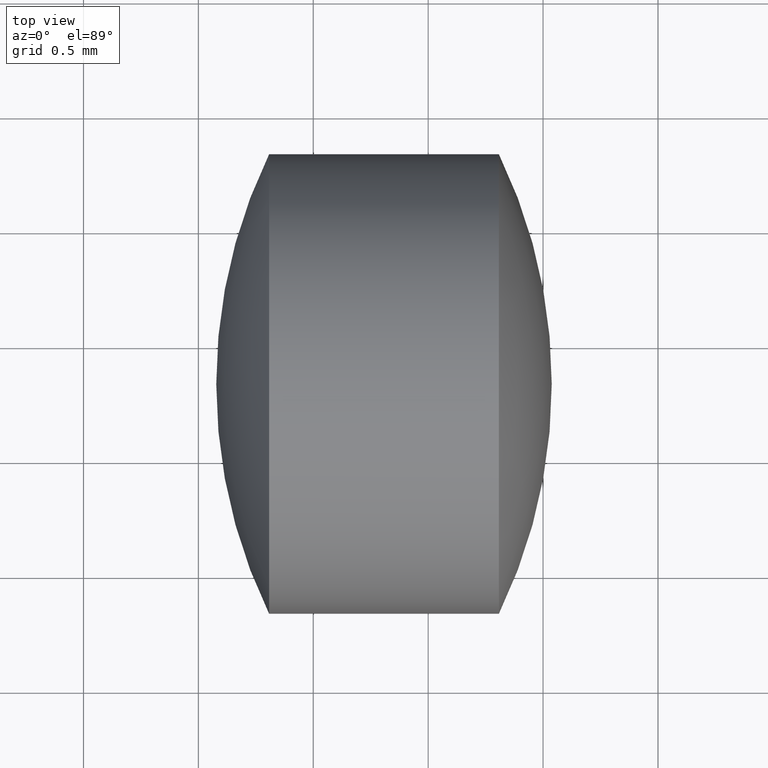
[diagram: clean part render]
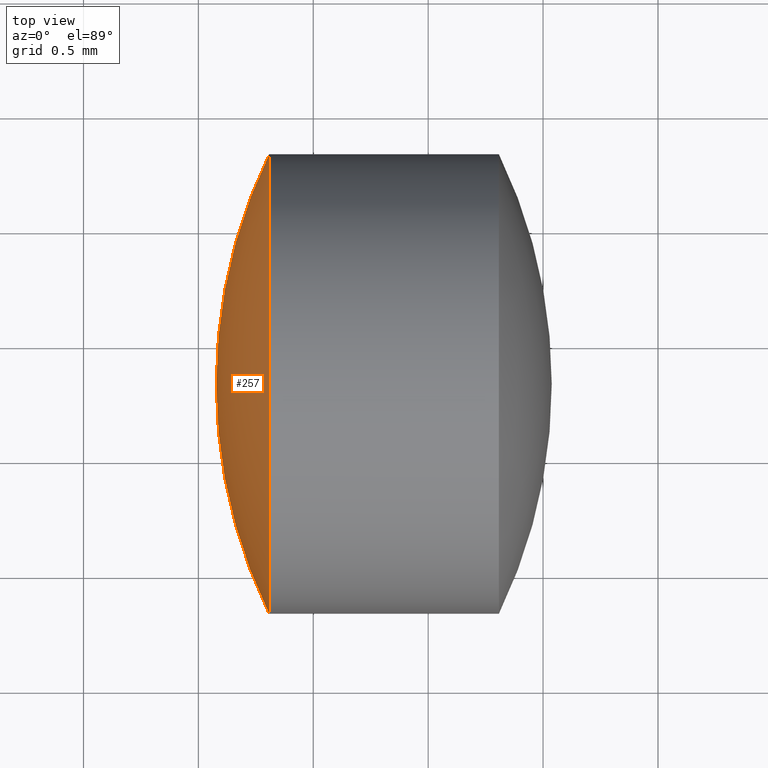
[diagram: same view with one face highlighted and labeled with its STEP entity id]
A machine part, top view. The second image highlights one B-rep face of the part: STEP entity #257.
In plain terms, the highlighted spherical surface has radius 2.2889 mm.
Its self-contained STEP definition (entity closure, byte-faithful):
#3 = EDGE_CURVE ( 'NONE', #84, #253, #224, .T. ) ;
#5 = DIRECTION ( 'NONE',  ( 1.214306433183652800E-014, -1.000000000000000000, 0.0000000000000000000 ) ) ;
#17 = AXIS2_PLACEMENT_3D ( 'NONE', #233, #119, #281 ) ;
#20 = AXIS2_PLACEMENT_3D ( 'NONE', #270, #86, #182 ) ;
#26 = DIRECTION ( 'NONE',  ( -0.0000000000000000000, 0.0000000000000000000, -1.000000000000000000 ) ) ;
#43 = EDGE_CURVE ( 'NONE', #241, #253, #214, .T. ) ;
#47 = DIRECTION ( 'NONE',  ( -1.000000000000000000, -1.235158047084468200E-014, -0.0000000000000000000 ) ) ;
#75 = AXIS2_PLACEMENT_3D ( 'NONE', #186, #26, #164 ) ;
#84 = VERTEX_POINT ( 'NONE', #195 ) ;
#86 = DIRECTION ( 'NONE',  ( -0.0000000000000000000, 0.0000000000000000000, 1.000000000000000000 ) ) ;
#102 = AXIS2_PLACEMENT_3D ( 'NONE', #279, #47, #5 ) ;
#119 = DIRECTION ( 'NONE',  ( -1.512632348803089900E-030, 1.224646799147353200E-016, -1.000000000000000000 ) ) ;
#133 = CIRCLE ( 'NONE', #102, 1.000000000000092400 ) ;
#159 = ORIENTED_EDGE ( 'NONE', *, *, #43, .F. ) ;
#164 = DIRECTION ( 'NONE',  ( -1.212609438996293800E-014, 1.000000000000000000, 0.0000000000000000000 ) ) ;
#180 = CARTESIAN_POINT ( 'NONE',  ( 6.077731793281122600, 3.828040395526763000, 0.0000000000000000000 ) ) ;
#182 = DIRECTION ( 'NONE',  ( 1.000000000000000000, 0.0000000000000000000, 0.0000000000000000000 ) ) ;
#184 = EDGE_LOOP ( 'NONE', ( #159, #278, #187 ) ) ;
#186 = CARTESIAN_POINT ( 'NONE',  ( 8.366644836758903000, 3.828040395526791000, 0.0000000000000000000 ) ) ;
#187 = ORIENTED_EDGE ( 'NONE', *, *, #3, .T. ) ;
#191 = CARTESIAN_POINT ( 'NONE',  ( 6.307731793281251800, 2.828040395526657300, -1.224646799147485600E-016 ) ) ;
#195 = CARTESIAN_POINT ( 'NONE',  ( 6.307731793281227800, 4.828040395526881100, 0.0000000000000000000 ) ) ;
#203 = SPHERICAL_SURFACE ( 'NONE', #75, 2.288913043477780500 ) ;
#214 = CIRCLE ( 'NONE', #17, 2.288913043477780900 ) ;
#224 = CIRCLE ( 'NONE', #20, 2.288913043477780500 ) ;
#233 = CARTESIAN_POINT ( 'NONE',  ( 8.366644836758903000, 3.828040395526791000, 0.0000000000000000000 ) ) ;
#241 = VERTEX_POINT ( 'NONE', #191 ) ;
#253 = VERTEX_POINT ( 'NONE', #180 ) ;
#257 = ADVANCED_FACE ( 'NONE', ( #276 ), #203, .T. ) ;
#270 = CARTESIAN_POINT ( 'NONE',  ( 8.366644836758903000, 3.828040395526791000, 0.0000000000000000000 ) ) ;
#276 = FACE_OUTER_BOUND ( 'NONE', #184, .T. ) ;
#278 = ORIENTED_EDGE ( 'NONE', *, *, #293, .T. ) ;
#279 = CARTESIAN_POINT ( 'NONE',  ( 6.307731793281238500, 3.828040395526772800, 0.0000000000000000000 ) ) ;
#281 = DIRECTION ( 'NONE',  ( 0.0000000000000000000, 1.000000000000000000, 1.224646799147353000E-016 ) ) ;
#293 = EDGE_CURVE ( 'NONE', #241, #84, #133, .T. ) ;